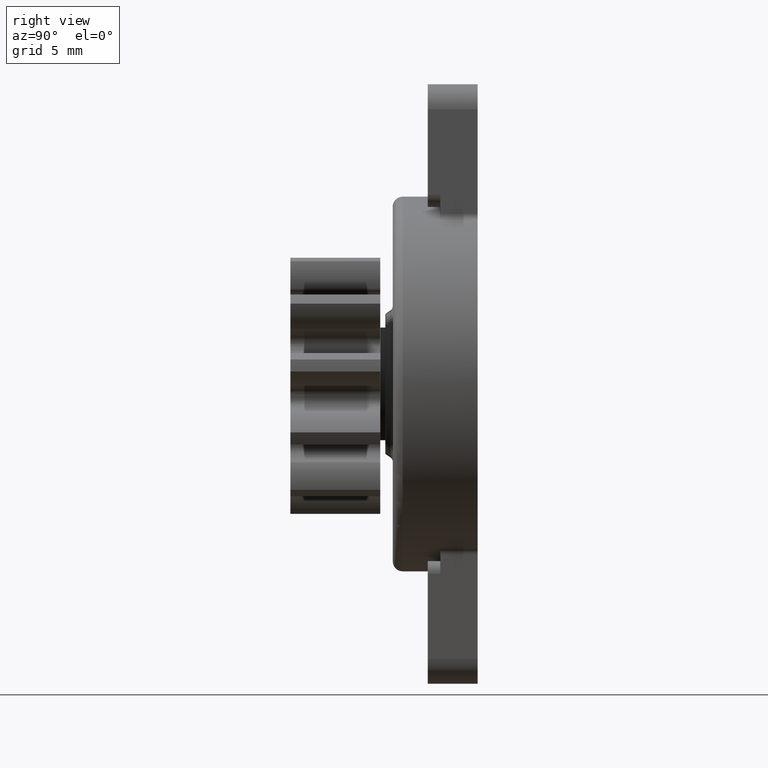
[diagram: clean part render]
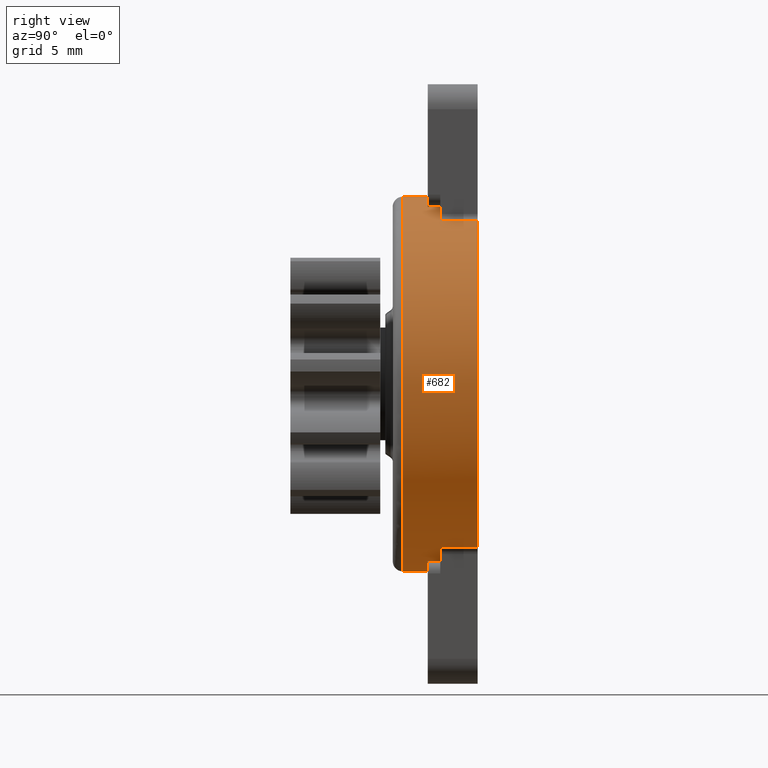
[diagram: same view with one face highlighted and labeled with its STEP entity id]
A machine part, right view. The second image highlights one B-rep face of the part: STEP entity #682.
In plain terms, the highlighted cylindrical surface (partial cylindrical patch) has radius 7.5 mm, axis along (-0, 1, 0).
Its self-contained STEP definition (entity closure, byte-faithful):
#682=ADVANCED_FACE('',(#7113),#7112,.T.);
#7112=CYLINDRICAL_SURFACE('',#10451,7.50000071526E+00);
#7113=FACE_OUTER_BOUND('',#10452,.T.);
#10448=CARTESIAN_POINT('',(0.00000000000E+00,9.98500000000E+02,0.00000000000E+00));
#10449=DIRECTION('',(-0.00000000000E+00,1.00000000000E+00,0.00000000000E+00));
#10450=DIRECTION('',(0.00000000000E+00,0.00000000000E+00,1.00000000000E+00));
#10451=AXIS2_PLACEMENT_3D('',#10448,#10449,#10450);
#10452=EDGE_LOOP('',(#14258,#14259,#14260,#14261,#14262,#14263,#14264,#14265));
#14258=ORIENTED_EDGE('',*,*,#14303,.T.);
#14259=ORIENTED_EDGE('',*,*,#14358,.T.);
#14260=ORIENTED_EDGE('',*,*,#14331,.T.);
#14261=ORIENTED_EDGE('',*,*,#14361,.T.);
#14262=ORIENTED_EDGE('',*,*,#14345,.T.);
#14263=ORIENTED_EDGE('',*,*,#16180,.F.);
#14264=ORIENTED_EDGE('',*,*,#16177,.F.);
#14265=ORIENTED_EDGE('',*,*,#16181,.T.);
#14303=EDGE_CURVE('',#16384,#16377,#16385,.T.);
#14331=EDGE_CURVE('',#16574,#16567,#16575,.T.);
#14345=EDGE_CURVE('',#16672,#16665,#16673,.T.);
#14358=EDGE_CURVE('',#16377,#16574,#16756,.T.);
#14361=EDGE_CURVE('',#16567,#16672,#16774,.T.);
#16177=EDGE_CURVE('',#28857,#28850,#28870,.T.);
#16180=EDGE_CURVE('',#28850,#16665,#28888,.T.);
#16181=EDGE_CURVE('',#28857,#16384,#28894,.T.);
#16377=VERTEX_POINT('',#29027);
#16384=VERTEX_POINT('',#29032);
#16385=CIRCLE('',#29036,7.50000002407E+00);
#16567=VERTEX_POINT('',#29150);
#16574=VERTEX_POINT('',#29155);
#16575=CIRCLE('',#29159,7.50000071526E+00);
#16665=VERTEX_POINT('',#29217);
#16672=VERTEX_POINT('',#29222);
#16673=CIRCLE('',#29226,7.50000002407E+00);
#16756=LINE('',#29272,#29273);
#16774=LINE('',#29281,#29282);
#28850=VERTEX_POINT('',#36012);
#28857=VERTEX_POINT('',#36016);
#28870=CIRCLE('',#36027,7.50000002407E+00);
#28888=(BOUNDED_CURVE() B_SPLINE_CURVE(1,(#36032,#36033),.UNSPECIFIED.,.F.,.F.) B_SPLINE_CURVE_WITH_KNOTS((2,2),(8.33333233997E-02,5.00000007000E-01),.UNSPECIFIED.) CURVE() GEOMETRIC_REPRESENTATION_ITEM() RATIONAL_B_SPLINE_CURVE((1.00000000000E+00,1.00000000000E+00)) REPRESENTATION_ITEM('') );
#28894=(BOUNDED_CURVE() B_SPLINE_CURVE(1,(#36034,#36035),.UNSPECIFIED.,.F.,.F.) B_SPLINE_CURVE_WITH_KNOTS((2,2),(8.33333333333E-02,5.00000011100E-01),.UNSPECIFIED.) CURVE() GEOMETRIC_REPRESENTATION_ITEM() RATIONAL_B_SPLINE_CURVE((7.50000000000E-01,7.50000000000E-01)) REPRESENTATION_ITEM('') );
#29027=CARTESIAN_POINT('',(3.65384583052E+00,-1.49999992008E+00,-6.54976419483E+00));
#29032=CARTESIAN_POINT('',(-1.71430656871E-08,-1.49999992008E+00,-7.50000002407E+00));
#29033=CARTESIAN_POINT('',(0.00000000000E+00,-1.49999992008E+00,0.00000000000E+00));
#29034=DIRECTION('',(0.00000000000E+00,-1.00000000000E+00,0.00000000000E+00));
#29035=DIRECTION('',(-0.00000000000E+00,-0.00000000000E+00,1.00000000000E+00));
#29036=AXIS2_PLACEMENT_3D('',#29033,#29034,#29035);
#29150=CARTESIAN_POINT('',(3.65384616725E+00,0.00000000000E+00,6.54976479844E+00));
#29155=CARTESIAN_POINT('',(3.65384616725E+00,0.00000000000E+00,-6.54976479844E+00));
#29156=CARTESIAN_POINT('',(0.00000000000E+00,0.00000000000E+00,0.00000000000E+00));
#29157=DIRECTION('',(0.00000000000E+00,-1.00000000000E+00,0.00000000000E+00));
#29158=DIRECTION('',(-0.00000000000E+00,-0.00000000000E+00,-1.00000000000E+00));
#29159=AXIS2_PLACEMENT_3D('',#29156,#29157,#29158);
#29217=CARTESIAN_POINT('',(0.00000000000E+00,-1.49999992008E+00,7.50000002407E+00));
#29222=CARTESIAN_POINT('',(3.65384616725E+00,-1.50000000000E+00,6.54976479844E+00));
#29223=CARTESIAN_POINT('',(0.00000000000E+00,-1.49999992008E+00,0.00000000000E+00));
#29224=DIRECTION('',(0.00000000000E+00,-1.00000000000E+00,0.00000000000E+00));
#29225=DIRECTION('',(4.87179442505E-01,0.00000000000E+00,8.73301889841E-01));
#29226=AXIS2_PLACEMENT_3D('',#29223,#29224,#29225);
#29272=CARTESIAN_POINT('',(3.65384616725E+00,-1.49999992008E+00,-6.54976479844E+00));
#29273=VECTOR('',#29274,1.49999992008E+00);
#29274=DIRECTION('',(0.00000000000E+00,1.00000000000E+00,0.00000000000E+00));
#29281=CARTESIAN_POINT('',(3.65384616725E+00,0.00000000000E+00,6.54976479844E+00));
#29282=VECTOR('',#29283,1.50000000000E+00);
#29283=DIRECTION('',(0.00000000000E+00,-1.00000000000E+00,0.00000000000E+00));
#36012=CARTESIAN_POINT('',(8.88178419700E-16,-2.99999992008E+00,7.50000002407E+00));
#36016=CARTESIAN_POINT('',(0.00000000000E+00,-2.99999992008E+00,-7.50000002407E+00));
#36024=CARTESIAN_POINT('',(0.00000000000E+00,-2.99999992008E+00,0.00000000000E+00));
#36025=DIRECTION('',(0.00000000000E+00,-1.00000000000E+00,-0.00000000000E+00));
#36026=DIRECTION('',(-1.22460635382E-16,0.00000000000E+00,-1.00000000000E+00));
#36027=AXIS2_PLACEMENT_3D('',#36024,#36025,#36026);
#36032=CARTESIAN_POINT('',(0.00000000000E+00,-2.99999995584E+00,7.50000071526E+00));
#36033=CARTESIAN_POINT('',(0.00000000000E+00,-1.49999993484E+00,7.50000071526E+00));
#36034=CARTESIAN_POINT('',(0.00000000000E+00,-2.99999992008E+00,-7.50000071526E+00));
#36035=CARTESIAN_POINT('',(0.00000000000E+00,-1.49999992008E+00,-7.50000071526E+00));